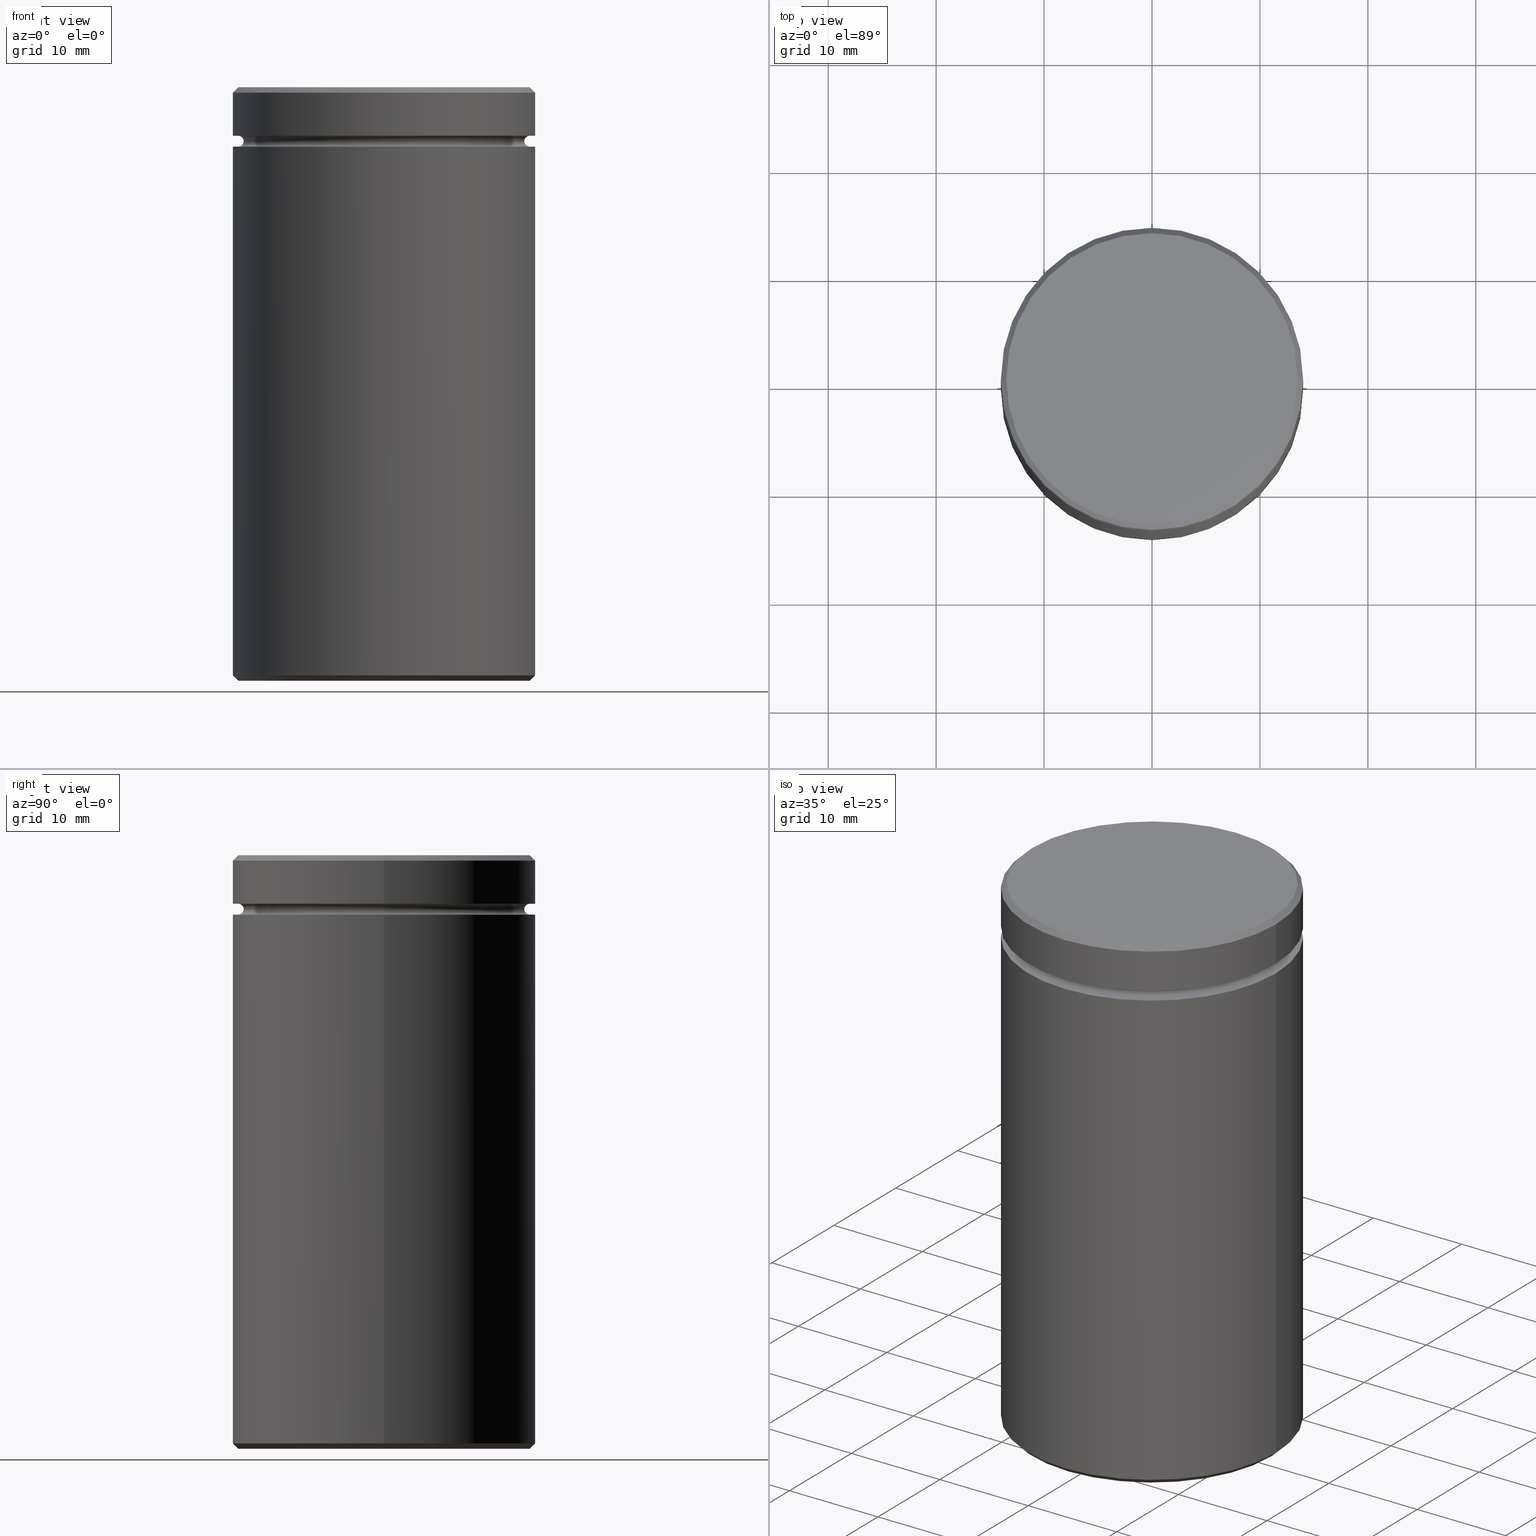
[diagram: canonical four-view strip — front | top / right | iso, engineering-drawing reading convention]
A machine part, canonical four-view strip (front | top / right | iso — engineering-drawing reading convention). The complete STEP part file that produces these views, byte-faithful:
ISO-10303-21;
HEADER;
FILE_DESCRIPTION (( 'STEP AP203' ),
    '1' );
FILE_NAME ('ba41.STEP',
    '2024-01-02T19:36:33',
    ( '' ),
    ( '' ),
    'SwSTEP 2.0',
    'SolidWorks 2019',
    '' );
FILE_SCHEMA (( 'CONFIG_CONTROL_DESIGN' ));
ENDSEC;

DATA;
#1 = DIRECTION ( 'NONE',  ( -1.000000000000000000, 0.000000000000000000, 0.000000000000000000 ) ) ;
#2 = ORIENTED_EDGE ( 'NONE', *, *, #430, .F. ) ;
#3 = CARTESIAN_POINT ( 'NONE',  ( 0.000000000000000000, 0.000000000000000000, -4.500000000000000888 ) ) ;
#4 = PERSON_AND_ORGANIZATION ( #397, #110 ) ;
#5 = CARTESIAN_POINT ( 'NONE',  ( 0.000000000000000000, 0.000000000000000000, -19.00000000000000355 ) ) ;
#6 = DIRECTION ( 'NONE',  ( -1.224646799147353207E-16, 1.000000000000000000, 0.000000000000000000 ) ) ;
#7 = CIRCLE ( 'NONE', #339, 0.5000000000000004441 ) ;
#8 = CARTESIAN_POINT ( 'NONE',  ( -8.500000000000000000, 0.000000000000000000, -19.00000000000000355 ) ) ;
#9 = CARTESIAN_POINT ( 'NONE',  ( 0.000000000000000000, 0.000000000000000000, -19.00000000000000355 ) ) ;
#10 = ORIENTED_EDGE ( 'NONE', *, *, #37, .T. ) ;
#11 = CARTESIAN_POINT ( 'NONE',  ( 0.000000000000000000, 0.000000000000000000, -4.500000000000000888 ) ) ;
#12 = DIRECTION ( 'NONE',  ( 0.000000000000000000, -1.000000000000000000, 0.000000000000000000 ) ) ;
#13 = FACE_BOUND ( 'NONE', #347, .T. ) ;
#14 = EDGE_LOOP ( 'NONE', ( #187, #223 ) ) ;
#15 = DATE_AND_TIME ( #249, #207 ) ;
#16 = APPLICATION_PROTOCOL_DEFINITION ( 'international standard', 'config_control_design', 1994, #559 ) ;
#17 = CYLINDRICAL_SURFACE ( 'NONE', #493, 14.00000000000000000 ) ;
#18 = CARTESIAN_POINT ( 'NONE',  ( -14.00000000000000000, 1.714505518806294638E-15, -4.500000000000000888 ) ) ;
#19 = EDGE_CURVE ( 'NONE', #69, #490, #403, .T. ) ;
#20 = CIRCLE ( 'NONE', #346, 14.00000000000000000 ) ;
#21 = ADVANCED_FACE ( 'NONE', ( #231 ), #554, .F. ) ;
#22 = VERTEX_POINT ( 'NONE', #279 ) ;
#23 = ORIENTED_EDGE ( 'NONE', *, *, #188, .T. ) ;
#24 = DIRECTION ( 'NONE',  ( 1.000000000000000000, 0.000000000000000000, 0.000000000000000000 ) ) ;
#25 = AXIS2_PLACEMENT_3D ( 'NONE', #161, #195, #415 ) ;
#26 = AXIS2_PLACEMENT_3D ( 'NONE', #414, #252, #289 ) ;
#27 = APPLICATION_CONTEXT ( 'configuration controlled 3d designs of mechanical parts and assemblies' ) ;
#28 = CC_DESIGN_DATE_AND_TIME_ASSIGNMENT ( #15, #374, ( #169 ) ) ;
#29 = CYLINDRICAL_SURFACE ( 'NONE', #317, 8.500000000000000000 ) ;
#30 = ADVANCED_FACE ( 'NONE', ( #64 ), #197, .T. ) ;
#31 = FACE_OUTER_BOUND ( 'NONE', #479, .T. ) ;
#32 = CARTESIAN_POINT ( 'NONE',  ( 14.00000000000000000, 0.000000000000000000, 0.000000000000000000 ) ) ;
#33 =( LENGTH_UNIT ( ) NAMED_UNIT ( * ) SI_UNIT ( .MILLI., .METRE. ) );
#34 = FACE_OUTER_BOUND ( 'NONE', #382, .T. ) ;
#35 = AXIS2_PLACEMENT_3D ( 'NONE', #166, #337, #517 ) ;
#36 = PLANE ( 'NONE',  #152 ) ;
#37 = EDGE_CURVE ( 'NONE', #285, #22, #277, .T. ) ;
#38 = CIRCLE ( 'NONE', #239, 13.50000000000000178 ) ;
#39 = DIRECTION ( 'NONE',  ( -1.000000000000000000, 0.000000000000000000, 0.000000000000000000 ) ) ;
#40 = VERTEX_POINT ( 'NONE', #535 ) ;
#41 = DIRECTION ( 'NONE',  ( -0.000000000000000000, -0.000000000000000000, 1.000000000000000000 ) ) ;
#42 = VERTEX_POINT ( 'NONE', #126 ) ;
#43 = LINE ( 'NONE', #372, #47 ) ;
#44 = EDGE_CURVE ( 'NONE', #40, #183, #423, .T. ) ;
#45 = ORIENTED_EDGE ( 'NONE', *, *, #391, .F. ) ;
#46 = PRODUCT_RELATED_PRODUCT_CATEGORY ( 'detail', '', ( #149 ) ) ;
#47 = VECTOR ( 'NONE', #156, 1000.000000000000000 ) ;
#48 = ORIENTED_EDGE ( 'NONE', *, *, #497, .T. ) ;
#49 = VECTOR ( 'NONE', #290, 1000.000000000000000 ) ;
#50 = VERTEX_POINT ( 'NONE', #385 ) ;
#51 = EDGE_LOOP ( 'NONE', ( #557, #363 ) ) ;
#52 = FACE_BOUND ( 'NONE', #222, .T. ) ;
#53 = ORIENTED_EDGE ( 'NONE', *, *, #297, .T. ) ;
#54 = CARTESIAN_POINT ( 'NONE',  ( 8.500000000000000000, 1.040949779275250140E-15, -55.00000000000000000 ) ) ;
#55 = APPLICATION_PROTOCOL_DEFINITION ( 'international standard', 'config_control_design', 1994, #27 ) ;
#56 = AXIS2_PLACEMENT_3D ( 'NONE', #175, #344, #474 ) ;
#57 = ORIENTED_EDGE ( 'NONE', *, *, #491, .F. ) ;
#58 = CARTESIAN_POINT ( 'NONE',  ( 0.000000000000000000, 0.000000000000000000, 0.000000000000000000 ) ) ;
#59 = AXIS2_PLACEMENT_3D ( 'NONE', #241, #411, #111 ) ;
#60 = CC_DESIGN_SECURITY_CLASSIFICATION ( #519, ( #389 ) ) ;
#61 = ORIENTED_EDGE ( 'NONE', *, *, #506, .F. ) ;
#62 = ORIENTED_EDGE ( 'NONE', *, *, #447, .F. ) ;
#63 = LINE ( 'NONE', #453, #509 ) ;
#64 = FACE_OUTER_BOUND ( 'NONE', #524, .T. ) ;
#65 = ADVANCED_BREP_SHAPE_REPRESENTATION ( 'ba41', ( #176, #26 ), #162 ) ;
#66 = ORIENTED_EDGE ( 'NONE', *, *, #552, .F. ) ;
#67 = TOROIDAL_SURFACE ( 'NONE', #388, 13.50000000000000178, 0.5000000000000000000 ) ;
#68 = DIRECTION ( 'NONE',  ( 0.000000000000000000, 0.000000000000000000, -1.000000000000000000 ) ) ;
#69 = VERTEX_POINT ( 'NONE', #513 ) ;
#70 = CIRCLE ( 'NONE', #257, 14.00000000000000000 ) ;
#71 = DIRECTION ( 'NONE',  ( 0.000000000000000000, 0.000000000000000000, -1.000000000000000000 ) ) ;
#72 = FACE_OUTER_BOUND ( 'NONE', #139, .T. ) ;
#73 = CARTESIAN_POINT ( 'NONE',  ( 0.000000000000000000, 0.000000000000000000, -54.49999999999999289 ) ) ;
#74 = ADVANCED_FACE ( 'NONE', ( #563 ), #245, .T. ) ;
#75 = CARTESIAN_POINT ( 'NONE',  ( 8.500000000000000000, 1.040949779275250140E-15, -19.00000000000000355 ) ) ;
#76 = FACE_OUTER_BOUND ( 'NONE', #361, .T. ) ;
#77 = ADVANCED_FACE ( 'NONE', ( #284 ), #355, .T. ) ;
#78 = CALENDAR_DATE ( 2024, 2, 1 ) ;
#79 = ORIENTED_EDGE ( 'NONE', *, *, #19, .T. ) ;
#80 = DIRECTION ( 'NONE',  ( -0.000000000000000000, -0.000000000000000000, -1.000000000000000000 ) ) ;
#81 = DIRECTION ( 'NONE',  ( -1.000000000000000000, 0.000000000000000000, 0.000000000000000000 ) ) ;
#82 = AXIS2_PLACEMENT_3D ( 'NONE', #429, #432, #182 ) ;
#83 = DIRECTION ( 'NONE',  ( -0.000000000000000000, -0.000000000000000000, 1.000000000000000000 ) ) ;
#84 = LOCAL_TIME ( 20, 36, 33.00000000000000000, #114 ) ;
#85 = AXIS2_PLACEMENT_3D ( 'NONE', #102, #408, #359 ) ;
#86 = CARTESIAN_POINT ( 'NONE',  ( 0.000000000000000000, 0.000000000000000000, -54.49999999999999289 ) ) ;
#87 = CYLINDRICAL_SURFACE ( 'NONE', #351, 8.500000000000000000 ) ;
#88 = CARTESIAN_POINT ( 'NONE',  ( 0.000000000000000000, 0.000000000000000000, -5.500000000000000000 ) ) ;
#89 = AXIS2_PLACEMENT_3D ( 'NONE', #547, #201, #376 ) ;
#90 = FACE_OUTER_BOUND ( 'NONE', #565, .T. ) ;
#91 = CIRCLE ( 'NONE', #137, 8.500000000000000000 ) ;
#92 = ORIENTED_EDGE ( 'NONE', *, *, #292, .T. ) ;
#93 = DIRECTION ( 'NONE',  ( 1.000000000000000000, 0.000000000000000000, 0.000000000000000000 ) ) ;
#94 = CC_DESIGN_DATE_AND_TIME_ASSIGNMENT ( #99, #566, ( #519 ) ) ;
#95 = ORIENTED_EDGE ( 'NONE', *, *, #117, .T. ) ;
#96 = ORIENTED_EDGE ( 'NONE', *, *, #340, .T. ) ;
#97 = ORIENTED_EDGE ( 'NONE', *, *, #141, .T. ) ;
#98 = ORIENTED_EDGE ( 'NONE', *, *, #297, .F. ) ;
#99 = DATE_AND_TIME ( #150, #300 ) ;
#100 = CONICAL_SURFACE ( 'NONE', #170, 14.00000000000000000, 0.7853981633974431720 ) ;
#101 = ORIENTED_EDGE ( 'NONE', *, *, #135, .T. ) ;
#102 = CARTESIAN_POINT ( 'NONE',  ( 0.000000000000000000, 0.000000000000000000, -4.999999999999999112 ) ) ;
#103 = LINE ( 'NONE', #75, #425 ) ;
#104 = LINE ( 'NONE', #324, #536 ) ;
#105 = CARTESIAN_POINT ( 'NONE',  ( -13.50000000000000178, 1.653273178848927064E-15, -5.500000000000000000 ) ) ;
#106 = CC_DESIGN_PERSON_AND_ORGANIZATION_ASSIGNMENT ( #458, #173, ( #389 ) ) ;
#107 = ORIENTED_EDGE ( 'NONE', *, *, #229, .F. ) ;
#108 = CONICAL_SURFACE ( 'NONE', #379, 13.50000000000001954, 0.7853981633974482790 ) ;
#109 = CARTESIAN_POINT ( 'NONE',  ( -13.50000000000000178, 1.653273178848927064E-15, -4.999999999999999112 ) ) ;
#110 = ORGANIZATION ( 'NEUR�EN�', 'NEUR�EN�', '' ) ;
#111 = DIRECTION ( 'NONE',  ( 1.000000000000000000, 0.000000000000000000, 0.000000000000000000 ) ) ;
#112 = PERSON_AND_ORGANIZATION_ROLE ( 'classification_officer' ) ;
#113 = ORIENTED_EDGE ( 'NONE', *, *, #375, .F. ) ;
#114 = COORDINATED_UNIVERSAL_TIME_OFFSET ( 1, 0, .AHEAD. ) ;
#115 = DIRECTION ( 'NONE',  ( -1.000000000000000000, 0.000000000000000000, 0.000000000000000000 ) ) ;
#116 = CIRCLE ( 'NONE', #35, 14.00000000000000000 ) ;
#117 = EDGE_CURVE ( 'NONE', #354, #426, #350, .T. ) ;
#118 = COORDINATED_UNIVERSAL_TIME_OFFSET ( 1, 0, .AHEAD. ) ;
#119 = FACE_OUTER_BOUND ( 'NONE', #261, .T. ) ;
#120 = DIRECTION ( 'NONE',  ( 0.000000000000000000, 0.000000000000000000, -1.000000000000000000 ) ) ;
#121 = CARTESIAN_POINT ( 'NONE',  ( 0.000000000000000000, 0.000000000000000000, -0.4999999999999813483 ) ) ;
#122 = CARTESIAN_POINT ( 'NONE',  ( 0.000000000000000000, 0.000000000000000000, -55.00000000000000000 ) ) ;
#123 = DIRECTION ( 'NONE',  ( -0.000000000000000000, -0.000000000000000000, 1.000000000000000000 ) ) ;
#124 = FACE_OUTER_BOUND ( 'NONE', #398, .T. ) ;
#125 = CIRCLE ( 'NONE', #56, 14.00000000000000000 ) ;
#126 = CARTESIAN_POINT ( 'NONE',  ( -13.00000000000000178, 1.622657008870243277E-15, -4.999999999999999112 ) ) ;
#127 = DIRECTION ( 'NONE',  ( 1.000000000000000000, 0.000000000000000000, 0.000000000000000000 ) ) ;
#128 = VECTOR ( 'NONE', #264, 1000.000000000000000 ) ;
#129 = CARTESIAN_POINT ( 'NONE',  ( -14.00000000000000000, 1.714505518806294638E-15, 0.000000000000000000 ) ) ;
#130 = DIRECTION ( 'NONE',  ( -0.000000000000000000, -1.000000000000000000, -0.000000000000000000 ) ) ;
#131 = CARTESIAN_POINT ( 'NONE',  ( 0.000000000000000000, 0.000000000000000000, -5.000000000000000888 ) ) ;
#132 = PERSON_AND_ORGANIZATION ( #397, #110 ) ;
#133 = CARTESIAN_POINT ( 'NONE',  ( 0.000000000000000000, 0.000000000000000000, -4.999999999999999112 ) ) ;
#134 = CIRCLE ( 'NONE', #295, 13.50000000000000178 ) ;
#135 = EDGE_CURVE ( 'NONE', #42, #285, #537, .T. ) ;
#136 = DIRECTION ( 'NONE',  ( 0.000000000000000000, 0.000000000000000000, -1.000000000000000000 ) ) ;
#137 = AXIS2_PLACEMENT_3D ( 'NONE', #5, #311, #564 ) ;
#138 = VERTEX_POINT ( 'NONE', #54 ) ;
#139 = EDGE_LOOP ( 'NONE', ( #262, #302, #2, #45 ) ) ;
#140 = ORIENTED_EDGE ( 'NONE', *, *, #19, .F. ) ;
#141 = EDGE_CURVE ( 'NONE', #356, #439, #186, .T. ) ;
#142 = ORIENTED_EDGE ( 'NONE', *, *, #303, .T. ) ;
#143 = DIRECTION ( 'NONE',  ( 1.000000000000000000, 0.000000000000000000, 0.000000000000000000 ) ) ;
#144 = CIRCLE ( 'NONE', #443, 0.5000000000000004441 ) ;
#145 = FACE_OUTER_BOUND ( 'NONE', #401, .T. ) ;
#146 = AXIS2_PLACEMENT_3D ( 'NONE', #326, #68, #214 ) ;
#147 = ORIENTED_EDGE ( 'NONE', *, *, #44, .F. ) ;
#148 = DIRECTION ( 'NONE',  ( -0.000000000000000000, -0.000000000000000000, 1.000000000000000000 ) ) ;
#149 = PRODUCT ( 'ba41', 'ba41', '', ( #163 ) ) ;
#150 = CALENDAR_DATE ( 2024, 2, 1 ) ;
#151 = ORIENTED_EDGE ( 'NONE', *, *, #497, .F. ) ;
#152 = AXIS2_PLACEMENT_3D ( 'NONE', #520, #136, #212 ) ;
#153 = VERTEX_POINT ( 'NONE', #105 ) ;
#154 = CARTESIAN_POINT ( 'NONE',  ( 0.000000000000000000, 0.000000000000000000, 0.000000000000000000 ) ) ;
#155 = EDGE_CURVE ( 'NONE', #490, #354, #442, .T. ) ;
#156 = DIRECTION ( 'NONE',  ( -0.7071067811865439090, 8.659560562354889717E-17, 0.7071067811865512365 ) ) ;
#157 = CARTESIAN_POINT ( 'NONE',  ( 0.000000000000000000, 13.00000000000000178, -5.500000000000000000 ) ) ;
#158 = APPROVAL_STATUS ( 'not_yet_approved' ) ;
#159 = FACE_OUTER_BOUND ( 'NONE', #472, .T. ) ;
#160 = CIRCLE ( 'NONE', #455, 13.00000000000000178 ) ;
#161 = CARTESIAN_POINT ( 'NONE',  ( 0.000000000000000000, 0.000000000000000000, 0.000000000000000000 ) ) ;
#162 =( GEOMETRIC_REPRESENTATION_CONTEXT ( 3 ) GLOBAL_UNCERTAINTY_ASSIGNED_CONTEXT ( ( #390 ) ) GLOBAL_UNIT_ASSIGNED_CONTEXT ( ( #33, #546, #205 ) ) REPRESENTATION_CONTEXT ( 'NONE', 'WORKASPACE' ) );
#163 = MECHANICAL_CONTEXT ( 'NONE', #559, 'mechanical' ) ;
#164 = DIRECTION ( 'NONE',  ( 1.000000000000000000, 0.000000000000000000, 0.000000000000000000 ) ) ;
#165 = ORIENTED_EDGE ( 'NONE', *, *, #471, .F. ) ;
#166 = CARTESIAN_POINT ( 'NONE',  ( 0.000000000000000000, 0.000000000000000000, -0.4999999999999813483 ) ) ;
#167 = DIRECTION ( 'NONE',  ( -0.000000000000000000, -0.000000000000000000, -1.000000000000000000 ) ) ;
#168 = CARTESIAN_POINT ( 'NONE',  ( 13.49999999999999822, 0.000000000000000000, -55.00000000000000000 ) ) ;
#169 = PRODUCT_DEFINITION ( 'NEZN�M�', '', #389, #179 ) ;
#170 = AXIS2_PLACEMENT_3D ( 'NONE', #244, #549, #540 ) ;
#171 = LOCAL_TIME ( 20, 36, 33.00000000000000000, #312 ) ;
#172 = CLOSED_SHELL ( 'NONE', ( #21, #208, #334, #440, #569, #178, #30, #304, #77, #274, #544, #177, #492, #293, #74, #529, #406, #431, #189 ) ) ;
#173 = PERSON_AND_ORGANIZATION_ROLE ( 'creator' ) ;
#174 = VERTEX_POINT ( 'NONE', #410 ) ;
#175 = CARTESIAN_POINT ( 'NONE',  ( 0.000000000000000000, 0.000000000000000000, -5.500000000000000000 ) ) ;
#176 = MANIFOLD_SOLID_BREP ( 'Zaoblit1', #172 ) ;
#177 = ADVANCED_FACE ( 'NONE', ( #13, #373 ), #459, .T. ) ;
#178 = ADVANCED_FACE ( 'NONE', ( #72 ), #17, .T. ) ;
#179 = DESIGN_CONTEXT ( 'detailed design', #27, 'design' ) ;
#180 = DIRECTION ( 'NONE',  ( 0.000000000000000000, 0.000000000000000000, -1.000000000000000000 ) ) ;
#181 = ORIENTED_EDGE ( 'NONE', *, *, #340, .F. ) ;
#182 = DIRECTION ( 'NONE',  ( 1.000000000000000000, 0.000000000000000000, 0.000000000000000000 ) ) ;
#183 = VERTEX_POINT ( 'NONE', #211 ) ;
#184 = AXIS2_PLACEMENT_3D ( 'NONE', #131, #470, #39 ) ;
#185 = ORIENTED_EDGE ( 'NONE', *, *, #310, .F. ) ;
#186 = LINE ( 'NONE', #528, #49 ) ;
#187 = ORIENTED_EDGE ( 'NONE', *, *, #430, .T. ) ;
#188 = EDGE_CURVE ( 'NONE', #40, #527, #203, .T. ) ;
#189 = ADVANCED_FACE ( 'NONE', ( #34 ), #220, .F. ) ;
#190 = CARTESIAN_POINT ( 'NONE',  ( 0.000000000000000000, 0.000000000000000000, -5.000000000000000888 ) ) ;
#191 = APPROVAL_DATE_TIME ( #438, #516 ) ;
#192 = DIRECTION ( 'NONE',  ( -1.000000000000000000, 1.224646799147353454E-16, 0.000000000000000000 ) ) ;
#193 = CIRCLE ( 'NONE', #402, 0.5000000000000004441 ) ;
#194 = DIRECTION ( 'NONE',  ( 1.224646799147353207E-16, 1.000000000000000000, 0.000000000000000000 ) ) ;
#195 = DIRECTION ( 'NONE',  ( 0.000000000000000000, -0.000000000000000000, 1.000000000000000000 ) ) ;
#196 = DIRECTION ( 'NONE',  ( 0.000000000000000000, 0.000000000000000000, -1.000000000000000000 ) ) ;
#197 = CYLINDRICAL_SURFACE ( 'NONE', #258, 14.00000000000000000 ) ;
#198 = EDGE_CURVE ( 'NONE', #285, #42, #160, .T. ) ;
#199 = DIRECTION ( 'NONE',  ( -0.000000000000000000, -0.000000000000000000, 1.000000000000000000 ) ) ;
#200 = DIRECTION ( 'NONE',  ( -0.000000000000000000, -0.000000000000000000, 1.000000000000000000 ) ) ;
#201 = DIRECTION ( 'NONE',  ( 0.000000000000000000, 0.000000000000000000, -1.000000000000000000 ) ) ;
#202 = COORDINATED_UNIVERSAL_TIME_OFFSET ( 1, 0, .AHEAD. ) ;
#203 = CIRCLE ( 'NONE', #463, 14.00000000000000000 ) ;
#204 = CIRCLE ( 'NONE', #275, 8.500000000000000000 ) ;
#205 =( NAMED_UNIT ( * ) SI_UNIT ( $, .STERADIAN. ) SOLID_ANGLE_UNIT ( ) );
#206 = ORIENTED_EDGE ( 'NONE', *, *, #348, .F. ) ;
#207 = LOCAL_TIME ( 20, 36, 33.00000000000000000, #202 ) ;
#208 = ADVANCED_FACE ( 'NONE', ( #507 ), #473, .F. ) ;
#209 = DIRECTION ( 'NONE',  ( 1.000000000000000000, 0.000000000000000000, 0.000000000000000000 ) ) ;
#210 = CIRCLE ( 'NONE', #357, 13.50000000000000178 ) ;
#211 = CARTESIAN_POINT ( 'NONE',  ( -14.00000000000000000, 1.714505518806294638E-15, -5.500000000000000000 ) ) ;
#212 = DIRECTION ( 'NONE',  ( -1.000000000000000000, 0.000000000000000000, -0.000000000000000000 ) ) ;
#213 = EDGE_CURVE ( 'NONE', #495, #426, #338, .T. ) ;
#214 = DIRECTION ( 'NONE',  ( -1.000000000000000000, 0.000000000000000000, 0.000000000000000000 ) ) ;
#215 = ORIENTED_EDGE ( 'NONE', *, *, #506, .T. ) ;
#216 = CARTESIAN_POINT ( 'NONE',  ( 0.000000000000000000, 0.000000000000000000, 0.000000000000000000 ) ) ;
#217 = EDGE_LOOP ( 'NONE', ( #543, #521 ) ) ;
#218 = VERTEX_POINT ( 'NONE', #18 ) ;
#219 = ORIENTED_EDGE ( 'NONE', *, *, #413, .F. ) ;
#220 = TOROIDAL_SURFACE ( 'NONE', #184, 13.50000000000000178, 0.5000000000000000000 ) ;
#221 = ORIENTED_EDGE ( 'NONE', *, *, #273, .T. ) ;
#222 = EDGE_LOOP ( 'NONE', ( #215, #267 ) ) ;
#223 = ORIENTED_EDGE ( 'NONE', *, *, #310, .T. ) ;
#224 = FACE_OUTER_BOUND ( 'NONE', #441, .T. ) ;
#225 = ORIENTED_EDGE ( 'NONE', *, *, #242, .F. ) ;
#226 = DIRECTION ( 'NONE',  ( 1.000000000000000000, 0.000000000000000000, 0.000000000000000000 ) ) ;
#227 = VECTOR ( 'NONE', #123, 1000.000000000000000 ) ;
#228 = APPROVAL_PERSON_ORGANIZATION ( #4, #516, #450 ) ;
#229 = EDGE_CURVE ( 'NONE', #22, #50, #210, .T. ) ;
#230 = DIRECTION ( 'NONE',  ( -0.000000000000000000, -0.000000000000000000, 1.000000000000000000 ) ) ;
#231 = FACE_OUTER_BOUND ( 'NONE', #301, .T. ) ;
#232 = DIRECTION ( 'NONE',  ( -0.000000000000000000, -0.000000000000000000, 1.000000000000000000 ) ) ;
#233 = DIRECTION ( 'NONE',  ( 0.000000000000000000, 0.000000000000000000, -1.000000000000000000 ) ) ;
#234 = DIRECTION ( 'NONE',  ( -0.000000000000000000, -0.000000000000000000, 1.000000000000000000 ) ) ;
#235 = CARTESIAN_POINT ( 'NONE',  ( -14.00000000000000000, 1.714505518806294638E-15, 0.000000000000000000 ) ) ;
#236 = VECTOR ( 'NONE', #287, 1000.000000000000000 ) ;
#237 = CARTESIAN_POINT ( 'NONE',  ( 13.50000000000000178, 0.000000000000000000, -4.999999999999999112 ) ) ;
#238 = CARTESIAN_POINT ( 'NONE',  ( 14.00000000000000000, 0.000000000000000000, -54.49999999999999289 ) ) ;
#239 = AXIS2_PLACEMENT_3D ( 'NONE', #3, #323, #1 ) ;
#240 = VECTOR ( 'NONE', #454, 1000.000000000000114 ) ;
#241 = CARTESIAN_POINT ( 'NONE',  ( 0.000000000000000000, 0.000000000000000000, 0.000000000000000000 ) ) ;
#242 = EDGE_CURVE ( 'NONE', #153, #396, #247, .T. ) ;
#243 = DIRECTION ( 'NONE',  ( -0.000000000000000000, -0.000000000000000000, 1.000000000000000000 ) ) ;
#244 = CARTESIAN_POINT ( 'NONE',  ( 0.000000000000000000, 0.000000000000000000, -54.49999999999999289 ) ) ;
#245 = PLANE ( 'NONE',  #485 ) ;
#246 = DIRECTION ( 'NONE',  ( -1.000000000000000000, 0.000000000000000000, 0.000000000000000000 ) ) ;
#247 = CIRCLE ( 'NONE', #288, 13.50000000000000178 ) ;
#248 = APPROVAL ( #276, 'NEUR�EN�' ) ;
#249 = CALENDAR_DATE ( 2024, 2, 1 ) ;
#250 = LINE ( 'NONE', #235, #236 ) ;
#251 = DIRECTION ( 'NONE',  ( -1.000000000000000000, 0.000000000000000000, 0.000000000000000000 ) ) ;
#252 = DIRECTION ( 'NONE',  ( 0.000000000000000000, 0.000000000000000000, 1.000000000000000000 ) ) ;
#253 = DIRECTION ( 'NONE',  ( -1.000000000000000000, 0.000000000000000000, 0.000000000000000000 ) ) ;
#254 = CIRCLE ( 'NONE', #568, 13.49999999999999822 ) ;
#255 = CARTESIAN_POINT ( 'NONE',  ( -8.500000000000000000, 0.000000000000000000, -55.00000000000000000 ) ) ;
#256 = ORIENTED_EDGE ( 'NONE', *, *, #335, .F. ) ;
#257 = AXIS2_PLACEMENT_3D ( 'NONE', #11, #148, #226 ) ;
#258 = AXIS2_PLACEMENT_3D ( 'NONE', #154, #232, #371 ) ;
#259 = DIRECTION ( 'NONE',  ( -0.000000000000000000, -0.000000000000000000, 1.000000000000000000 ) ) ;
#260 = ORIENTED_EDGE ( 'NONE', *, *, #399, .T. ) ;
#261 = EDGE_LOOP ( 'NONE', ( #314, #206, #97, #96 ) ) ;
#262 = ORIENTED_EDGE ( 'NONE', *, *, #471, .T. ) ;
#263 = ORIENTED_EDGE ( 'NONE', *, *, #561, .T. ) ;
#264 = DIRECTION ( 'NONE',  ( -0.000000000000000000, -0.000000000000000000, 1.000000000000000000 ) ) ;
#265 = EDGE_LOOP ( 'NONE', ( #526, #433, #476, #358 ) ) ;
#266 = CONICAL_SURFACE ( 'NONE', #82, 14.00000000000000000, 0.7853981633974431720 ) ;
#267 = ORIENTED_EDGE ( 'NONE', *, *, #229, .T. ) ;
#268 = PERSON_AND_ORGANIZATION ( #397, #110 ) ;
#269 = ORIENTED_EDGE ( 'NONE', *, *, #37, .F. ) ;
#270 = DIRECTION ( 'NONE',  ( -1.000000000000000000, 0.000000000000000000, 0.000000000000000000 ) ) ;
#271 = PLANE ( 'NONE',  #446 ) ;
#272 = CALENDAR_DATE ( 2024, 2, 1 ) ;
#273 = EDGE_CURVE ( 'NONE', #490, #69, #533, .T. ) ;
#274 = ADVANCED_FACE ( 'NONE', ( #159 ), #418, .T. ) ;
#275 = AXIS2_PLACEMENT_3D ( 'NONE', #122, #196, #246 ) ;
#276 = APPROVAL_STATUS ( 'not_yet_approved' ) ;
#277 = CIRCLE ( 'NONE', #456, 0.5000000000000004441 ) ;
#278 = CARTESIAN_POINT ( 'NONE',  ( 0.000000000000000000, 0.000000000000000000, -55.00000000000000000 ) ) ;
#279 = CARTESIAN_POINT ( 'NONE',  ( 13.50000000000000178, 1.653273178848927064E-15, -4.500000000000000888 ) ) ;
#280 = COORDINATED_UNIVERSAL_TIME_OFFSET ( 1, 0, .AHEAD. ) ;
#281 = PERSON_AND_ORGANIZATION ( #397, #110 ) ;
#282 = APPROVAL_DATE_TIME ( #461, #368 ) ;
#283 = CARTESIAN_POINT ( 'NONE',  ( 0.000000000000000000, 0.000000000000000000, -4.500000000000000888 ) ) ;
#284 = FACE_OUTER_BOUND ( 'NONE', #515, .T. ) ;
#285 = VERTEX_POINT ( 'NONE', #538 ) ;
#286 = PERSON_AND_ORGANIZATION_ROLE ( 'creator' ) ;
#287 = DIRECTION ( 'NONE',  ( -0.000000000000000000, -0.000000000000000000, 1.000000000000000000 ) ) ;
#288 = AXIS2_PLACEMENT_3D ( 'NONE', #88, #551, #24 ) ;
#289 = DIRECTION ( 'NONE',  ( 1.000000000000000000, 0.000000000000000000, 0.000000000000000000 ) ) ;
#290 = DIRECTION ( 'NONE',  ( -0.000000000000000000, -0.000000000000000000, -1.000000000000000000 ) ) ;
#291 = PERSON_AND_ORGANIZATION ( #397, #110 ) ;
#292 = EDGE_CURVE ( 'NONE', #396, #153, #134, .T. ) ;
#293 = ADVANCED_FACE ( 'NONE', ( #119 ), #29, .F. ) ;
#294 = FACE_OUTER_BOUND ( 'NONE', #51, .T. ) ;
#295 = AXIS2_PLACEMENT_3D ( 'NONE', #332, #500, #464 ) ;
#296 = CC_DESIGN_APPROVAL ( #248, ( #169 ) ) ;
#297 = EDGE_CURVE ( 'NONE', #426, #354, #116, .T. ) ;
#298 = ORIENTED_EDGE ( 'NONE', *, *, #155, .F. ) ;
#299 = ORIENTED_EDGE ( 'NONE', *, *, #514, .F. ) ;
#300 = LOCAL_TIME ( 20, 36, 33.00000000000000000, #280 ) ;
#301 = EDGE_LOOP ( 'NONE', ( #101, #10, #61, #62 ) ) ;
#302 = ORIENTED_EDGE ( 'NONE', *, *, #44, .T. ) ;
#303 = EDGE_CURVE ( 'NONE', #477, #138, #103, .T. ) ;
#304 = ADVANCED_FACE ( 'NONE', ( #294, #498 ), #36, .T. ) ;
#305 = ORIENTED_EDGE ( 'NONE', *, *, #392, .F. ) ;
#306 = ORIENTED_EDGE ( 'NONE', *, *, #377, .F. ) ;
#307 = AXIS2_PLACEMENT_3D ( 'NONE', #412, #199, #499 ) ;
#308 = CARTESIAN_POINT ( 'NONE',  ( 0.000000000000000000, 0.000000000000000000, 0.000000000000000000 ) ) ;
#309 = AXIS2_PLACEMENT_3D ( 'NONE', #157, #330, #457 ) ;
#310 = EDGE_CURVE ( 'NONE', #183, #478, #125, .T. ) ;
#311 = DIRECTION ( 'NONE',  ( 0.000000000000000000, 0.000000000000000000, -1.000000000000000000 ) ) ;
#312 = COORDINATED_UNIVERSAL_TIME_OFFSET ( 1, 0, .AHEAD. ) ;
#313 = PERSON_AND_ORGANIZATION_ROLE ( 'design_owner' ) ;
#314 = ORIENTED_EDGE ( 'NONE', *, *, #303, .F. ) ;
#315 = SHAPE_DEFINITION_REPRESENTATION ( #534, #65 ) ;
#316 = ORIENTED_EDGE ( 'NONE', *, *, #447, .T. ) ;
#317 = AXIS2_PLACEMENT_3D ( 'NONE', #460, #550, #81 ) ;
#318 = DIRECTION ( 'NONE',  ( 0.000000000000000000, 0.000000000000000000, -1.000000000000000000 ) ) ;
#319 = DIRECTION ( 'NONE',  ( 0.000000000000000000, 0.000000000000000000, -1.000000000000000000 ) ) ;
#320 = APPROVAL_DATE_TIME ( #362, #248 ) ;
#321 = AXIS2_PLACEMENT_3D ( 'NONE', #283, #234, #143 ) ;
#322 = AXIS2_PLACEMENT_3D ( 'NONE', #190, #319, #449 ) ;
#323 = DIRECTION ( 'NONE',  ( -0.000000000000000000, -0.000000000000000000, 1.000000000000000000 ) ) ;
#324 = CARTESIAN_POINT ( 'NONE',  ( 13.50000000000001954, 1.653273178848929233E-15, 0.000000000000000000 ) ) ;
#325 = CARTESIAN_POINT ( 'NONE',  ( -14.00000000000000000, 1.714505518806294638E-15, -0.4999999999999813483 ) ) ;
#326 = CARTESIAN_POINT ( 'NONE',  ( 0.000000000000000000, 0.000000000000000000, -55.00000000000000000 ) ) ;
#327 = PERSON_AND_ORGANIZATION ( #397, #110 ) ;
#328 = DIRECTION ( 'NONE',  ( 1.000000000000000000, 0.000000000000000000, 0.000000000000000000 ) ) ;
#329 = DIRECTION ( 'NONE',  ( 0.7071067811865439090, 0.000000000000000000, 0.7071067811865512365 ) ) ;
#330 = DIRECTION ( 'NONE',  ( 0.000000000000000000, -0.000000000000000000, 1.000000000000000000 ) ) ;
#331 = CIRCLE ( 'NONE', #307, 14.00000000000000000 ) ;
#332 = CARTESIAN_POINT ( 'NONE',  ( 0.000000000000000000, 0.000000000000000000, -5.500000000000000000 ) ) ;
#333 = AXIS2_PLACEMENT_3D ( 'NONE', #308, #484, #270 ) ;
#334 = ADVANCED_FACE ( 'NONE', ( #90 ), #266, .T. ) ;
#335 = EDGE_CURVE ( 'NONE', #174, #40, #43, .T. ) ;
#336 = ORIENTED_EDGE ( 'NONE', *, *, #213, .F. ) ;
#337 = DIRECTION ( 'NONE',  ( 0.000000000000000000, 0.000000000000000000, -1.000000000000000000 ) ) ;
#338 = LINE ( 'NONE', #32, #227 ) ;
#339 = AXIS2_PLACEMENT_3D ( 'NONE', #237, #12, #71 ) ;
#340 = EDGE_CURVE ( 'NONE', #439, #138, #417, .T. ) ;
#341 = CARTESIAN_POINT ( 'NONE',  ( 0.000000000000000000, 0.000000000000000000, 0.000000000000000000 ) ) ;
#342 = ORIENTED_EDGE ( 'NONE', *, *, #213, .T. ) ;
#343 = CARTESIAN_POINT ( 'NONE',  ( -13.50000000000000178, 0.000000000000000000, -5.000000000000000888 ) ) ;
#344 = DIRECTION ( 'NONE',  ( -0.000000000000000000, -0.000000000000000000, 1.000000000000000000 ) ) ;
#345 = ORIENTED_EDGE ( 'NONE', *, *, #465, .F. ) ;
#346 = AXIS2_PLACEMENT_3D ( 'NONE', #73, #243, #545 ) ;
#347 = EDGE_LOOP ( 'NONE', ( #92, #522 ) ) ;
#348 = EDGE_CURVE ( 'NONE', #356, #477, #434, .T. ) ;
#349 = CARTESIAN_POINT ( 'NONE',  ( 0.000000000000000000, 0.000000000000000000, -4.999999999999999112 ) ) ;
#350 = CIRCLE ( 'NONE', #437, 14.00000000000000000 ) ;
#351 = AXIS2_PLACEMENT_3D ( 'NONE', #416, #167, #253 ) ;
#352 = ORIENTED_EDGE ( 'NONE', *, *, #117, .F. ) ;
#353 = PERSON_AND_ORGANIZATION_ROLE ( 'design_supplier' ) ;
#354 = VERTEX_POINT ( 'NONE', #325 ) ;
#355 = PLANE ( 'NONE',  #25 ) ;
#356 = VERTEX_POINT ( 'NONE', #8 ) ;
#357 = AXIS2_PLACEMENT_3D ( 'NONE', #421, #387, #251 ) ;
#358 = ORIENTED_EDGE ( 'NONE', *, *, #399, .F. ) ;
#359 = DIRECTION ( 'NONE',  ( 1.000000000000000000, 0.000000000000000000, 0.000000000000000000 ) ) ;
#360 = CIRCLE ( 'NONE', #146, 13.49999999999999822 ) ;
#361 = EDGE_LOOP ( 'NONE', ( #256, #306, #395, #436 ) ) ;
#362 = DATE_AND_TIME ( #452, #84 ) ;
#363 = ORIENTED_EDGE ( 'NONE', *, *, #491, .T. ) ;
#364 = LINE ( 'NONE', #238, #409 ) ;
#365 = AXIS2_PLACEMENT_3D ( 'NONE', #469, #502, #380 ) ;
#366 = DIRECTION ( 'NONE',  ( -1.000000000000000000, 0.000000000000000000, -0.000000000000000000 ) ) ;
#367 = DIRECTION ( 'NONE',  ( -1.000000000000000000, -1.224646799147353454E-16, 0.000000000000000000 ) ) ;
#368 = APPROVAL ( #158, 'NEUR�EN�' ) ;
#369 = DIRECTION ( 'NONE',  ( 0.000000000000000000, 0.000000000000000000, -1.000000000000000000 ) ) ;
#370 = CARTESIAN_POINT ( 'NONE',  ( -13.50000000000001954, 0.000000000000000000, 0.000000000000000000 ) ) ;
#371 = DIRECTION ( 'NONE',  ( 1.000000000000000000, 0.000000000000000000, 0.000000000000000000 ) ) ;
#372 = CARTESIAN_POINT ( 'NONE',  ( -14.00000000000000000, 1.714505518806294638E-15, -54.49999999999999289 ) ) ;
#373 = FACE_OUTER_BOUND ( 'NONE', #14, .T. ) ;
#374 = DATE_TIME_ROLE ( 'creation_date' ) ;
#375 = EDGE_CURVE ( 'NONE', #42, #153, #193, .T. ) ;
#376 = DIRECTION ( 'NONE',  ( -1.000000000000000000, 0.000000000000000000, 0.000000000000000000 ) ) ;
#377 = EDGE_CURVE ( 'NONE', #488, #174, #254, .T. ) ;
#378 = DIRECTION ( 'NONE',  ( -1.000000000000000000, 0.000000000000000000, -0.000000000000000000 ) ) ;
#379 = AXIS2_PLACEMENT_3D ( 'NONE', #216, #556, #467 ) ;
#380 = DIRECTION ( 'NONE',  ( 1.000000000000000000, 0.000000000000000000, 0.000000000000000000 ) ) ;
#381 = DIRECTION ( 'NONE',  ( -1.000000000000000000, 0.000000000000000000, 0.000000000000000000 ) ) ;
#382 = EDGE_LOOP ( 'NONE', ( #269, #562, #316, #107 ) ) ;
#383 = APPROVAL_ROLE ( '' ) ;
#384 = DIRECTION ( 'NONE',  ( -0.000000000000000000, -0.000000000000000000, 1.000000000000000000 ) ) ;
#385 = CARTESIAN_POINT ( 'NONE',  ( -13.50000000000000178, 0.000000000000000000, -4.500000000000000888 ) ) ;
#386 = DIRECTION ( 'NONE',  ( 1.000000000000000000, 0.000000000000000000, 0.000000000000000000 ) ) ;
#387 = DIRECTION ( 'NONE',  ( -0.000000000000000000, -0.000000000000000000, 1.000000000000000000 ) ) ;
#388 = AXIS2_PLACEMENT_3D ( 'NONE', #349, #41, #93 ) ;
#389 = PRODUCT_DEFINITION_FORMATION_WITH_SPECIFIED_SOURCE ( 'LIBOVOLN�', '', #149, .NOT_KNOWN. ) ;
#390 = UNCERTAINTY_MEASURE_WITH_UNIT (LENGTH_MEASURE( 1.000000000000000082E-05 ), #33, 'distance_accuracy_value', 'NONE');
#391 = EDGE_CURVE ( 'NONE', #527, #478, #63, .T. ) ;
#392 = EDGE_CURVE ( 'NONE', #488, #527, #364, .T. ) ;
#393 = EDGE_LOOP ( 'NONE', ( #66, #555, #518, #98 ) ) ;
#394 = AXIS2_PLACEMENT_3D ( 'NONE', #424, #200, #386 ) ;
#395 = ORIENTED_EDGE ( 'NONE', *, *, #392, .T. ) ;
#396 = VERTEX_POINT ( 'NONE', #503 ) ;
#397 = PERSON ( 'NEUR�EN�', 'NEUR�EN�', 'NEUR�EN�', ('NEUR�EN�'), ('NEUR�EN�'), ('NEUR�EN�') ) ;
#398 = EDGE_LOOP ( 'NONE', ( #299, #142, #487, #531 ) ) ;
#399 = EDGE_CURVE ( 'NONE', #285, #396, #7, .T. ) ;
#400 = CARTESIAN_POINT ( 'NONE',  ( 0.000000000000000000, 14.00000000000000000, -4.500000000000000888 ) ) ;
#401 = EDGE_LOOP ( 'NONE', ( #147, #23, #445, #185 ) ) ;
#402 = AXIS2_PLACEMENT_3D ( 'NONE', #109, #194, #192 ) ;
#403 = CIRCLE ( 'NONE', #59, 13.50000000000001954 ) ;
#404 = APPROVAL_ROLE ( '' ) ;
#405 = DIRECTION ( 'NONE',  ( -0.000000000000000000, -0.000000000000000000, 1.000000000000000000 ) ) ;
#406 = ADVANCED_FACE ( 'NONE', ( #76 ), #100, .T. ) ;
#407 = CARTESIAN_POINT ( 'NONE',  ( 13.50000000000000178, 1.653273178848927064E-15, -5.000000000000000888 ) ) ;
#408 = DIRECTION ( 'NONE',  ( -0.000000000000000000, -0.000000000000000000, 1.000000000000000000 ) ) ;
#409 = VECTOR ( 'NONE', #329, 1000.000000000000000 ) ;
#410 = CARTESIAN_POINT ( 'NONE',  ( -13.49999999999999822, 1.683889348827610654E-15, -55.00000000000000000 ) ) ;
#411 = DIRECTION ( 'NONE',  ( -0.000000000000000000, -0.000000000000000000, 1.000000000000000000 ) ) ;
#412 = CARTESIAN_POINT ( 'NONE',  ( 0.000000000000000000, 0.000000000000000000, -5.500000000000000000 ) ) ;
#413 = EDGE_CURVE ( 'NONE', #218, #354, #250, .T. ) ;
#414 = CARTESIAN_POINT ( 'NONE',  ( 0.000000000000000000, 0.000000000000000000, 0.000000000000000000 ) ) ;
#415 = DIRECTION ( 'NONE',  ( 1.000000000000000000, 0.000000000000000000, 0.000000000000000000 ) ) ;
#416 = CARTESIAN_POINT ( 'NONE',  ( 0.000000000000000000, 0.000000000000000000, -19.00000000000000355 ) ) ;
#417 = CIRCLE ( 'NONE', #89, 8.500000000000000000 ) ;
#418 = CYLINDRICAL_SURFACE ( 'NONE', #394, 14.00000000000000000 ) ;
#419 = CC_DESIGN_APPROVAL ( #368, ( #389 ) ) ;
#420 = CARTESIAN_POINT ( 'NONE',  ( 14.00000000000000000, 0.000000000000000000, -0.4999999999999813483 ) ) ;
#421 = CARTESIAN_POINT ( 'NONE',  ( 0.000000000000000000, 0.000000000000000000, -4.500000000000000888 ) ) ;
#422 = DIRECTION ( 'NONE',  ( -0.000000000000000000, -0.000000000000000000, 1.000000000000000000 ) ) ;
#423 = LINE ( 'NONE', #129, #128 ) ;
#424 = CARTESIAN_POINT ( 'NONE',  ( 0.000000000000000000, 0.000000000000000000, 0.000000000000000000 ) ) ;
#425 = VECTOR ( 'NONE', #80, 1000.000000000000000 ) ;
#426 = VERTEX_POINT ( 'NONE', #420 ) ;
#427 = LOCAL_TIME ( 20, 36, 33.00000000000000000, #118 ) ;
#428 = EDGE_LOOP ( 'NONE', ( #181, #345 ) ) ;
#429 = CARTESIAN_POINT ( 'NONE',  ( 0.000000000000000000, 0.000000000000000000, -54.49999999999999289 ) ) ;
#430 = EDGE_CURVE ( 'NONE', #478, #183, #331, .T. ) ;
#431 = ADVANCED_FACE ( 'NONE', ( #510 ), #67, .F. ) ;
#432 = DIRECTION ( 'NONE',  ( -0.000000000000000000, -0.000000000000000000, 1.000000000000000000 ) ) ;
#433 = ORIENTED_EDGE ( 'NONE', *, *, #375, .T. ) ;
#434 = CIRCLE ( 'NONE', #539, 8.500000000000000000 ) ;
#435 = CARTESIAN_POINT ( 'NONE',  ( 14.00000000000000000, 0.000000000000000000, -54.49999999999999289 ) ) ;
#436 = ORIENTED_EDGE ( 'NONE', *, *, #188, .F. ) ;
#437 = AXIS2_PLACEMENT_3D ( 'NONE', #121, #486, #567 ) ;
#438 = DATE_AND_TIME ( #272, #171 ) ;
#439 = VERTEX_POINT ( 'NONE', #255 ) ;
#440 = ADVANCED_FACE ( 'NONE', ( #31 ), #108, .T. ) ;
#441 = EDGE_LOOP ( 'NONE', ( #451, #151 ) ) ;
#442 = LINE ( 'NONE', #370, #240 ) ;
#443 = AXIS2_PLACEMENT_3D ( 'NONE', #343, #130, #180 ) ;
#444 = DIRECTION ( 'NONE',  ( -1.000000000000000000, 0.000000000000000000, 0.000000000000000000 ) ) ;
#445 = ORIENTED_EDGE ( 'NONE', *, *, #391, .T. ) ;
#446 = AXIS2_PLACEMENT_3D ( 'NONE', #400, #318, #366 ) ;
#447 = EDGE_CURVE ( 'NONE', #42, #50, #144, .T. ) ;
#448 = ORIENTED_EDGE ( 'NONE', *, *, #198, .F. ) ;
#449 = DIRECTION ( 'NONE',  ( -1.000000000000000000, 0.000000000000000000, 0.000000000000000000 ) ) ;
#450 = APPROVAL_ROLE ( '' ) ;
#451 = ORIENTED_EDGE ( 'NONE', *, *, #561, .F. ) ;
#452 = CALENDAR_DATE ( 2024, 2, 1 ) ;
#453 = CARTESIAN_POINT ( 'NONE',  ( 14.00000000000000000, 0.000000000000000000, 0.000000000000000000 ) ) ;
#454 = DIRECTION ( 'NONE',  ( -0.7071067811865474617, 0.000000000000000000, -0.7071067811865474617 ) ) ;
#455 = AXIS2_PLACEMENT_3D ( 'NONE', #133, #422, #127 ) ;
#456 = AXIS2_PLACEMENT_3D ( 'NONE', #407, #6, #367 ) ;
#457 = DIRECTION ( 'NONE',  ( 1.000000000000000000, 0.000000000000000000, 0.000000000000000000 ) ) ;
#458 = PERSON_AND_ORGANIZATION ( #397, #110 ) ;
#459 = PLANE ( 'NONE',  #309 ) ;
#460 = CARTESIAN_POINT ( 'NONE',  ( 0.000000000000000000, 0.000000000000000000, -19.00000000000000355 ) ) ;
#461 = DATE_AND_TIME ( #78, #427 ) ;
#462 = ORIENTED_EDGE ( 'NONE', *, *, #413, .T. ) ;
#463 = AXIS2_PLACEMENT_3D ( 'NONE', #86, #83, #381 ) ;
#464 = DIRECTION ( 'NONE',  ( 1.000000000000000000, 0.000000000000000000, 0.000000000000000000 ) ) ;
#465 = EDGE_CURVE ( 'NONE', #138, #439, #204, .T. ) ;
#466 = CC_DESIGN_PERSON_AND_ORGANIZATION_ASSIGNMENT ( #281, #112, ( #519 ) ) ;
#467 = DIRECTION ( 'NONE',  ( -1.000000000000000000, 0.000000000000000000, 0.000000000000000000 ) ) ;
#468 = CARTESIAN_POINT ( 'NONE',  ( 14.00000000000000000, 0.000000000000000000, -4.500000000000000888 ) ) ;
#469 = CARTESIAN_POINT ( 'NONE',  ( 0.000000000000000000, 0.000000000000000000, -4.999999999999999112 ) ) ;
#470 = DIRECTION ( 'NONE',  ( 0.000000000000000000, 0.000000000000000000, -1.000000000000000000 ) ) ;
#471 = EDGE_CURVE ( 'NONE', #527, #40, #20, .T. ) ;
#472 = EDGE_LOOP ( 'NONE', ( #219, #48, #342, #53 ) ) ;
#473 = TOROIDAL_SURFACE ( 'NONE', #365, 13.50000000000000178, 0.5000000000000000000 ) ;
#474 = DIRECTION ( 'NONE',  ( 1.000000000000000000, 0.000000000000000000, 0.000000000000000000 ) ) ;
#475 = APPROVAL_PERSON_ORGANIZATION ( #291, #368, #383 ) ;
#476 = ORIENTED_EDGE ( 'NONE', *, *, #292, .F. ) ;
#477 = VERTEX_POINT ( 'NONE', #548 ) ;
#478 = VERTEX_POINT ( 'NONE', #504 ) ;
#479 = EDGE_LOOP ( 'NONE', ( #140, #494, #352, #298 ) ) ;
#480 = ORIENTED_EDGE ( 'NONE', *, *, #335, .T. ) ;
#481 = AXIS2_PLACEMENT_3D ( 'NONE', #541, #384, #209 ) ;
#482 = CC_DESIGN_PERSON_AND_ORGANIZATION_ASSIGNMENT ( #132, #353, ( #389 ) ) ;
#483 = CC_DESIGN_APPROVAL ( #516, ( #519 ) ) ;
#484 = DIRECTION ( 'NONE',  ( 0.000000000000000000, 0.000000000000000000, -1.000000000000000000 ) ) ;
#485 = AXIS2_PLACEMENT_3D ( 'NONE', #9, #233, #378 ) ;
#486 = DIRECTION ( 'NONE',  ( 0.000000000000000000, 0.000000000000000000, -1.000000000000000000 ) ) ;
#487 = ORIENTED_EDGE ( 'NONE', *, *, #465, .T. ) ;
#488 = VERTEX_POINT ( 'NONE', #168 ) ;
#489 = CYLINDRICAL_SURFACE ( 'NONE', #542, 14.00000000000000000 ) ;
#490 = VERTEX_POINT ( 'NONE', #508 ) ;
#491 = EDGE_CURVE ( 'NONE', #174, #488, #360, .T. ) ;
#492 = ADVANCED_FACE ( 'NONE', ( #145 ), #489, .T. ) ;
#493 = AXIS2_PLACEMENT_3D ( 'NONE', #341, #259, #164 ) ;
#494 = ORIENTED_EDGE ( 'NONE', *, *, #552, .T. ) ;
#495 = VERTEX_POINT ( 'NONE', #468 ) ;
#496 = DIRECTION ( 'NONE',  ( 0.7071067811865474617, 8.659560562354932858E-17, -0.7071067811865474617 ) ) ;
#497 = EDGE_CURVE ( 'NONE', #218, #495, #70, .T. ) ;
#498 = FACE_BOUND ( 'NONE', #428, .T. ) ;
#499 = DIRECTION ( 'NONE',  ( 1.000000000000000000, 0.000000000000000000, 0.000000000000000000 ) ) ;
#500 = DIRECTION ( 'NONE',  ( 0.000000000000000000, 0.000000000000000000, -1.000000000000000000 ) ) ;
#501 = CARTESIAN_POINT ( 'NONE',  ( 0.000000000000000000, 0.000000000000000000, -19.00000000000000355 ) ) ;
#502 = DIRECTION ( 'NONE',  ( -0.000000000000000000, -0.000000000000000000, 1.000000000000000000 ) ) ;
#503 = CARTESIAN_POINT ( 'NONE',  ( 13.50000000000000178, 0.000000000000000000, -5.500000000000000000 ) ) ;
#504 = CARTESIAN_POINT ( 'NONE',  ( 14.00000000000000000, 0.000000000000000000, -5.500000000000000000 ) ) ;
#505 = PERSON_AND_ORGANIZATION ( #397, #110 ) ;
#506 = EDGE_CURVE ( 'NONE', #50, #22, #38, .T. ) ;
#507 = FACE_OUTER_BOUND ( 'NONE', #265, .T. ) ;
#508 = CARTESIAN_POINT ( 'NONE',  ( -13.50000000000001954, 0.000000000000000000, 0.000000000000000000 ) ) ;
#509 = VECTOR ( 'NONE', #405, 1000.000000000000000 ) ;
#510 = FACE_OUTER_BOUND ( 'NONE', #558, .T. ) ;
#511 = SECURITY_CLASSIFICATION_LEVEL ( 'unclassified' ) ;
#512 = CONICAL_SURFACE ( 'NONE', #333, 13.50000000000001954, 0.7853981633974482790 ) ;
#513 = CARTESIAN_POINT ( 'NONE',  ( 13.50000000000001954, 1.683889348827612034E-15, 0.000000000000000000 ) ) ;
#514 = EDGE_CURVE ( 'NONE', #477, #356, #91, .T. ) ;
#515 = EDGE_LOOP ( 'NONE', ( #221, #79 ) ) ;
#516 = APPROVAL ( #525, 'NEUR�EN�' ) ;
#517 = DIRECTION ( 'NONE',  ( 1.000000000000000000, 0.000000000000000000, 0.000000000000000000 ) ) ;
#518 = ORIENTED_EDGE ( 'NONE', *, *, #155, .T. ) ;
#519 = SECURITY_CLASSIFICATION ( '', '', #511 ) ;
#520 = CARTESIAN_POINT ( 'NONE',  ( 0.000000000000000000, 14.00000000000000000, -55.00000000000000000 ) ) ;
#521 = ORIENTED_EDGE ( 'NONE', *, *, #514, .T. ) ;
#522 = ORIENTED_EDGE ( 'NONE', *, *, #242, .T. ) ;
#523 = CC_DESIGN_PERSON_AND_ORGANIZATION_ASSIGNMENT ( #505, #286, ( #169 ) ) ;
#524 = EDGE_LOOP ( 'NONE', ( #263, #462, #95, #336 ) ) ;
#525 = APPROVAL_STATUS ( 'not_yet_approved' ) ;
#526 = ORIENTED_EDGE ( 'NONE', *, *, #135, .F. ) ;
#527 = VERTEX_POINT ( 'NONE', #435 ) ;
#528 = CARTESIAN_POINT ( 'NONE',  ( -8.500000000000000000, 0.000000000000000000, -19.00000000000000355 ) ) ;
#529 = ADVANCED_FACE ( 'NONE', ( #530 ), #512, .T. ) ;
#530 = FACE_OUTER_BOUND ( 'NONE', #393, .T. ) ;
#531 = ORIENTED_EDGE ( 'NONE', *, *, #141, .F. ) ;
#532 = CC_DESIGN_PERSON_AND_ORGANIZATION_ASSIGNMENT ( #268, #313, ( #149 ) ) ;
#533 = CIRCLE ( 'NONE', #481, 13.50000000000001954 ) ;
#534 = PRODUCT_DEFINITION_SHAPE ( 'NONE', 'NONE',  #169 ) ;
#535 = CARTESIAN_POINT ( 'NONE',  ( -14.00000000000000000, 1.714505518806294638E-15, -54.49999999999999289 ) ) ;
#536 = VECTOR ( 'NONE', #496, 1000.000000000000114 ) ;
#537 = CIRCLE ( 'NONE', #85, 13.00000000000000178 ) ;
#538 = CARTESIAN_POINT ( 'NONE',  ( 13.00000000000000178, 0.000000000000000000, -4.999999999999999112 ) ) ;
#539 = AXIS2_PLACEMENT_3D ( 'NONE', #501, #120, #444 ) ;
#540 = DIRECTION ( 'NONE',  ( 1.000000000000000000, 0.000000000000000000, 0.000000000000000000 ) ) ;
#541 = CARTESIAN_POINT ( 'NONE',  ( 0.000000000000000000, 0.000000000000000000, 0.000000000000000000 ) ) ;
#542 = AXIS2_PLACEMENT_3D ( 'NONE', #58, #230, #328 ) ;
#543 = ORIENTED_EDGE ( 'NONE', *, *, #348, .T. ) ;
#544 = ADVANCED_FACE ( 'NONE', ( #52, #224 ), #271, .T. ) ;
#545 = DIRECTION ( 'NONE',  ( -1.000000000000000000, 0.000000000000000000, 0.000000000000000000 ) ) ;
#546 =( NAMED_UNIT ( * ) PLANE_ANGLE_UNIT ( ) SI_UNIT ( $, .RADIAN. ) );
#547 = CARTESIAN_POINT ( 'NONE',  ( 0.000000000000000000, 0.000000000000000000, -55.00000000000000000 ) ) ;
#548 = CARTESIAN_POINT ( 'NONE',  ( 8.500000000000000000, 1.040949779275250140E-15, -19.00000000000000355 ) ) ;
#549 = DIRECTION ( 'NONE',  ( -0.000000000000000000, -0.000000000000000000, 1.000000000000000000 ) ) ;
#550 = DIRECTION ( 'NONE',  ( -0.000000000000000000, -0.000000000000000000, -1.000000000000000000 ) ) ;
#551 = DIRECTION ( 'NONE',  ( 0.000000000000000000, 0.000000000000000000, -1.000000000000000000 ) ) ;
#552 = EDGE_CURVE ( 'NONE', #69, #426, #104, .T. ) ;
#553 = CIRCLE ( 'NONE', #321, 14.00000000000000000 ) ;
#554 = TOROIDAL_SURFACE ( 'NONE', #322, 13.50000000000000178, 0.5000000000000000000 ) ;
#555 = ORIENTED_EDGE ( 'NONE', *, *, #273, .F. ) ;
#556 = DIRECTION ( 'NONE',  ( 0.000000000000000000, 0.000000000000000000, -1.000000000000000000 ) ) ;
#557 = ORIENTED_EDGE ( 'NONE', *, *, #377, .T. ) ;
#558 = EDGE_LOOP ( 'NONE', ( #113, #448, #260, #225 ) ) ;
#559 = APPLICATION_CONTEXT ( 'configuration controlled 3d designs of mechanical parts and assemblies' ) ;
#560 = APPROVAL_PERSON_ORGANIZATION ( #327, #248, #404 ) ;
#561 = EDGE_CURVE ( 'NONE', #495, #218, #553, .T. ) ;
#562 = ORIENTED_EDGE ( 'NONE', *, *, #198, .T. ) ;
#563 = FACE_OUTER_BOUND ( 'NONE', #217, .T. ) ;
#564 = DIRECTION ( 'NONE',  ( -1.000000000000000000, 0.000000000000000000, 0.000000000000000000 ) ) ;
#565 = EDGE_LOOP ( 'NONE', ( #57, #480, #165, #305 ) ) ;
#566 = DATE_TIME_ROLE ( 'classification_date' ) ;
#567 = DIRECTION ( 'NONE',  ( 1.000000000000000000, 0.000000000000000000, 0.000000000000000000 ) ) ;
#568 = AXIS2_PLACEMENT_3D ( 'NONE', #278, #369, #115 ) ;
#569 = ADVANCED_FACE ( 'NONE', ( #124 ), #87, .F. ) ;
ENDSEC;
END-ISO-10303-21;
